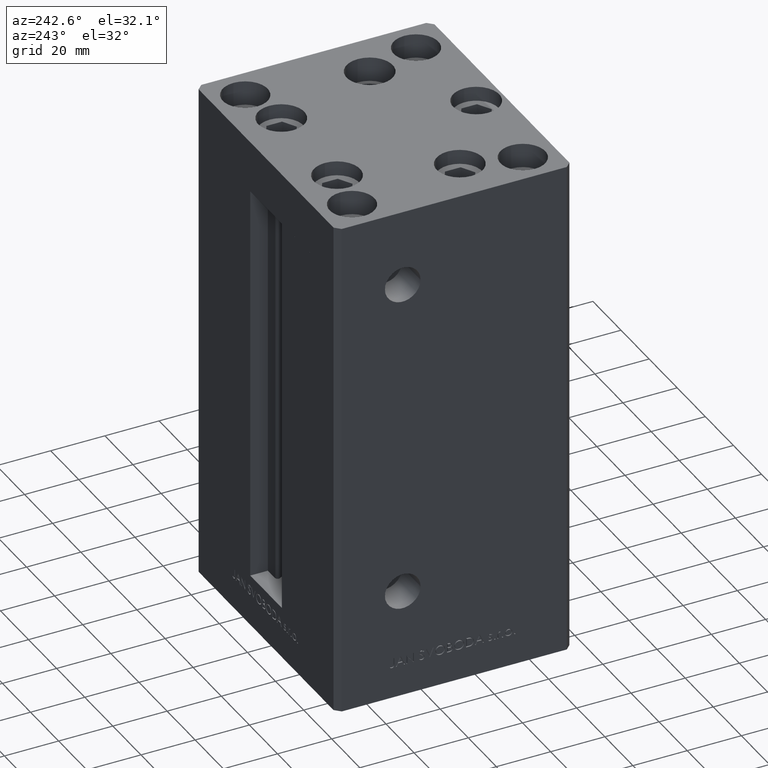
[diagram: clean part render]
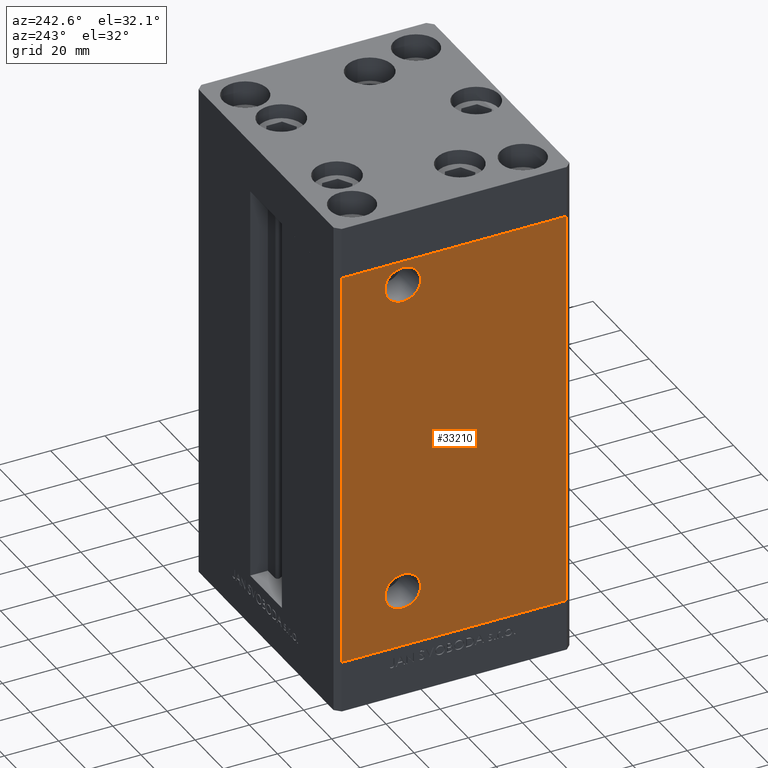
[diagram: same view with one face highlighted and labeled with its STEP entity id]
A machine part, auxiliary view. The second image highlights one B-rep face of the part: STEP entity #33210.
In plain terms, the highlighted planar face has unit normal (1, 0, 0).
Its self-contained STEP definition (entity closure, byte-faithful):
#189 = ORIENTED_EDGE ( 'NONE', *, *, #20614, .F. ) ;
#610 = CARTESIAN_POINT ( 'NONE',  ( -50.00000000000001421, 41.49999999999999289, 0.000000000000000000 ) ) ;
#1628 = ORIENTED_EDGE ( 'NONE', *, *, #40209, .F. ) ;
#2858 = EDGE_LOOP ( 'NONE', ( #35005, #43709 ) ) ;
#2932 = DIRECTION ( 'NONE',  ( 1.000000000000000000, 3.344045254895050480E-16, -0.000000000000000000 ) ) ;
#3331 = CARTESIAN_POINT ( 'NONE',  ( -49.99999999999998579, -41.49999999999999289, 148.5000000000000000 ) ) ;
#4879 = DIRECTION ( 'NONE',  ( -0.000000000000000000, -0.000000000000000000, -1.000000000000000000 ) ) ;
#4956 = CARTESIAN_POINT ( 'NONE',  ( -50.00000000000000711, 18.99999999999997158, 20.99999999999998934 ) ) ;
#6340 = CARTESIAN_POINT ( 'NONE',  ( -49.99999999999998579, -41.49999999999999289, 0.000000000000000000 ) ) ;
#8874 = ORIENTED_EDGE ( 'NONE', *, *, #47248, .F. ) ;
#9430 = EDGE_CURVE ( 'NONE', #13748, #33637, #40731, .T. ) ;
#9851 = VECTOR ( 'NONE', #15936, 1000.000000000000000 ) ;
#10310 = CARTESIAN_POINT ( 'NONE',  ( -50.00000000000001421, 41.49999999999999289, 148.5000000000000000 ) ) ;
#10554 = FACE_BOUND ( 'NONE', #2858, .T. ) ;
#11347 = CARTESIAN_POINT ( 'NONE',  ( -50.00000000000000711, 19.00000000000000000, 139.4999999999999716 ) ) ;
#11429 = ORIENTED_EDGE ( 'NONE', *, *, #45361, .T. ) ;
#11855 = DIRECTION ( 'NONE',  ( -1.000000000000000000, -2.275047181608927644E-16, 0.000000000000000000 ) ) ;
#12298 = VECTOR ( 'NONE', #4879, 1000.000000000000000 ) ;
#13490 = CARTESIAN_POINT ( 'NONE',  ( -49.99999999999998579, -41.49999999999999289, 148.5000000000000000 ) ) ;
#13571 = DIRECTION ( 'NONE',  ( -1.000000000000000000, -2.275047181608927644E-16, 0.000000000000000000 ) ) ;
#13748 = VERTEX_POINT ( 'NONE', #610 ) ;
#15054 = VERTEX_POINT ( 'NONE', #42157 ) ;
#15936 = DIRECTION ( 'NONE',  ( -0.000000000000000000, -0.000000000000000000, -1.000000000000000000 ) ) ;
#16608 = DIRECTION ( 'NONE',  ( 0.000000000000000000, -1.000000000000000000, 0.000000000000000000 ) ) ;
#17703 = ORIENTED_EDGE ( 'NONE', *, *, #9430, .T. ) ;
#18415 = FACE_BOUND ( 'NONE', #28774, .T. ) ;
#20614 = EDGE_CURVE ( 'NONE', #26334, #22477, #45091, .T. ) ;
#20634 = DIRECTION ( 'NONE',  ( -1.000000000000000000, -2.275047181608927644E-16, 0.000000000000000000 ) ) ;
#21137 = DIRECTION ( 'NONE',  ( 0.000000000000000000, -1.000000000000000000, 0.000000000000000000 ) ) ;
#21869 = EDGE_CURVE ( 'NONE', #30094, #15054, #29415, .T. ) ;
#22477 = VERTEX_POINT ( 'NONE', #3331 ) ;
#23001 = CARTESIAN_POINT ( 'NONE',  ( -50.00000000000000711, 12.41999999999996973, 20.99999999999998934 ) ) ;
#24700 = CARTESIAN_POINT ( 'NONE',  ( -50.00000000000000711, 19.00000000000000000, 139.4999999999999716 ) ) ;
#25645 = AXIS2_PLACEMENT_3D ( 'NONE', #44019, #32334, #16608 ) ;
#26334 = VERTEX_POINT ( 'NONE', #45680 ) ;
#26369 = CARTESIAN_POINT ( 'NONE',  ( -50.00000000000000711, 25.58000000000001606, 139.4999999999999716 ) ) ;
#28558 = CARTESIAN_POINT ( 'NONE',  ( -50.00000000000001421, 41.49999999999999289, 0.000000000000000000 ) ) ;
#28774 = EDGE_LOOP ( 'NONE', ( #1628, #38246 ) ) ;
#28938 = CARTESIAN_POINT ( 'NONE',  ( -50.00000000000000711, 25.57999999999997343, 20.99999999999998934 ) ) ;
#29044 = DIRECTION ( 'NONE',  ( 0.000000000000000000, -1.000000000000000000, 0.000000000000000000 ) ) ;
#29120 = AXIS2_PLACEMENT_3D ( 'NONE', #4956, #13571, #29044 ) ;
#29415 = CIRCLE ( 'NONE', #48052, 6.580000000000016058 ) ;
#30094 = VERTEX_POINT ( 'NONE', #26369 ) ;
#30810 = AXIS2_PLACEMENT_3D ( 'NONE', #11347, #11855, #31644 ) ;
#31644 = DIRECTION ( 'NONE',  ( 0.000000000000000000, -1.000000000000000000, 0.000000000000000000 ) ) ;
#32334 = DIRECTION ( 'NONE',  ( -1.000000000000000000, -2.275047181608927644E-16, 0.000000000000000000 ) ) ;
#33041 = EDGE_CURVE ( 'NONE', #35639, #46633, #41937, .T. ) ;
#33210 = ADVANCED_FACE ( 'NONE', ( #18415, #10554, #42016 ), #34130, .F. ) ;
#33637 = VERTEX_POINT ( 'NONE', #6340 ) ;
#34130 = PLANE ( 'NONE',  #36985 ) ;
#34448 = LINE ( 'NONE', #46902, #9851 ) ;
#35005 = ORIENTED_EDGE ( 'NONE', *, *, #43765, .F. ) ;
#35639 = VERTEX_POINT ( 'NONE', #28938 ) ;
#36426 = DIRECTION ( 'NONE',  ( 3.344045254895050973E-16, -1.000000000000000000, 0.000000000000000000 ) ) ;
#36985 = AXIS2_PLACEMENT_3D ( 'NONE', #37710, #2932, #45582 ) ;
#37710 = CARTESIAN_POINT ( 'NONE',  ( -50.00000000000001421, 41.49999999999999289, 148.5000000000000000 ) ) ;
#38223 = VECTOR ( 'NONE', #36426, 1000.000000000000000 ) ;
#38246 = ORIENTED_EDGE ( 'NONE', *, *, #33041, .F. ) ;
#38283 = VECTOR ( 'NONE', #41272, 1000.000000000000000 ) ;
#40209 = EDGE_CURVE ( 'NONE', #46633, #35639, #49373, .T. ) ;
#40731 = LINE ( 'NONE', #28558, #38223 ) ;
#41272 = DIRECTION ( 'NONE',  ( 3.344045254895050973E-16, -1.000000000000000000, 0.000000000000000000 ) ) ;
#41937 = CIRCLE ( 'NONE', #25645, 6.580000000000002736 ) ;
#42016 = FACE_OUTER_BOUND ( 'NONE', #48716, .T. ) ;
#42157 = CARTESIAN_POINT ( 'NONE',  ( -50.00000000000000711, 12.41999999999998394, 139.4999999999999716 ) ) ;
#43709 = ORIENTED_EDGE ( 'NONE', *, *, #21869, .F. ) ;
#43765 = EDGE_CURVE ( 'NONE', #15054, #30094, #48690, .T. ) ;
#44019 = CARTESIAN_POINT ( 'NONE',  ( -50.00000000000000711, 18.99999999999997158, 20.99999999999998934 ) ) ;
#44461 = LINE ( 'NONE', #13490, #12298 ) ;
#45091 = LINE ( 'NONE', #10310, #38283 ) ;
#45361 = EDGE_CURVE ( 'NONE', #26334, #13748, #34448, .T. ) ;
#45582 = DIRECTION ( 'NONE',  ( -3.344045254895050480E-16, 1.000000000000000000, 0.000000000000000000 ) ) ;
#45680 = CARTESIAN_POINT ( 'NONE',  ( -50.00000000000001421, 41.49999999999999289, 148.5000000000000000 ) ) ;
#46633 = VERTEX_POINT ( 'NONE', #23001 ) ;
#46902 = CARTESIAN_POINT ( 'NONE',  ( -50.00000000000001421, 41.49999999999999289, 148.5000000000000000 ) ) ;
#47248 = EDGE_CURVE ( 'NONE', #22477, #33637, #44461, .T. ) ;
#48052 = AXIS2_PLACEMENT_3D ( 'NONE', #24700, #20634, #21137 ) ;
#48690 = CIRCLE ( 'NONE', #30810, 6.580000000000016058 ) ;
#48716 = EDGE_LOOP ( 'NONE', ( #17703, #8874, #189, #11429 ) ) ;
#49373 = CIRCLE ( 'NONE', #29120, 6.580000000000002736 ) ;